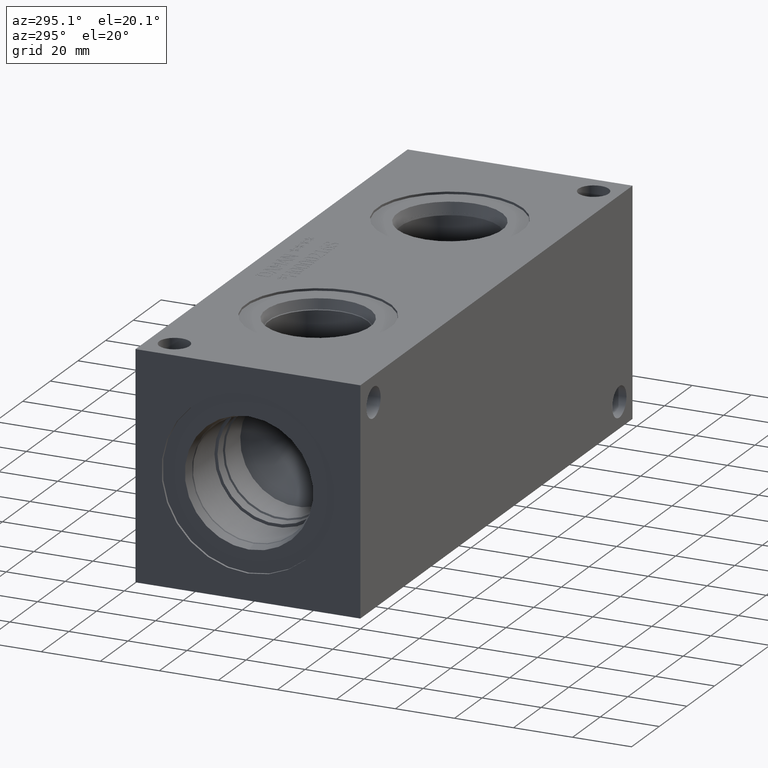
[diagram: clean part render]
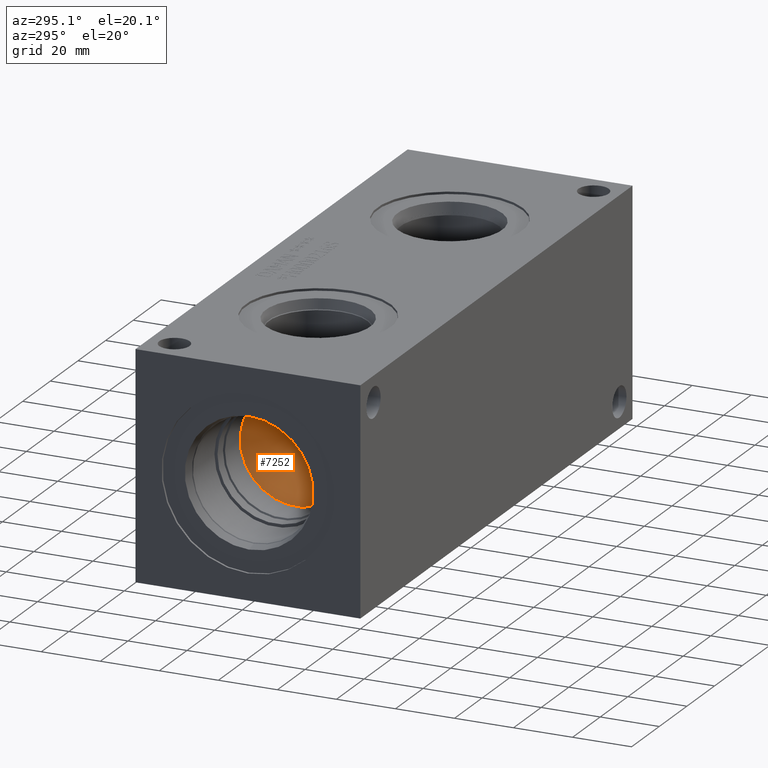
[diagram: same view with one face highlighted and labeled with its STEP entity id]
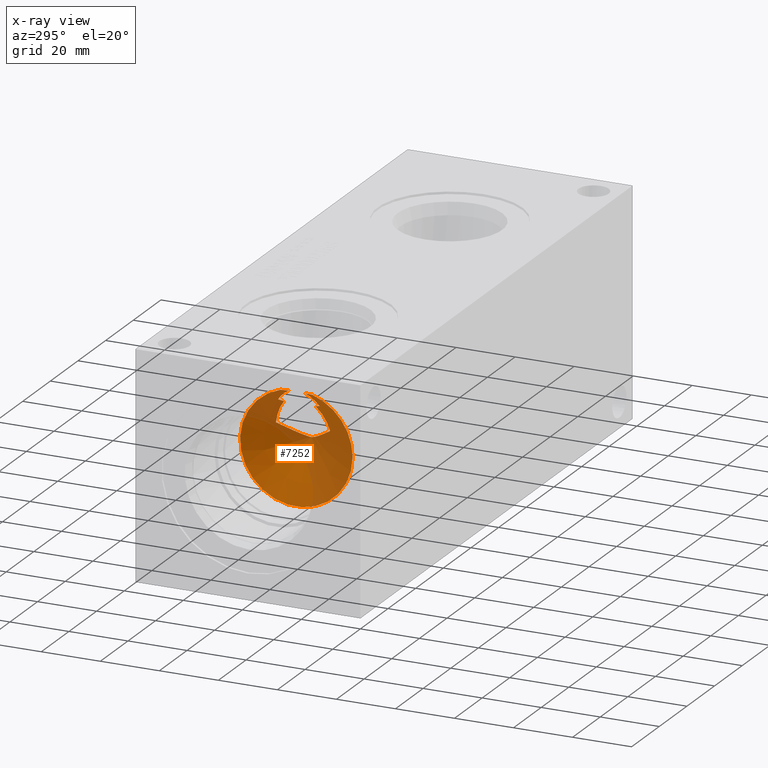
[diagram: x-ray of the same camera — body ghosted, the highlighted face saturated]
A machine part, auxiliary view. The second image highlights one B-rep face of the part: STEP entity #7252.
The next image is the same camera in x-ray: the body ghosted, the highlighted face saturated — about 50% of this face is hidden behind the body in this view.
In plain terms, the highlighted conical surface has half-angle 60 deg.
Its self-contained STEP definition (entity closure, byte-faithful):
#16=(
BOUNDED_CURVE()
B_SPLINE_CURVE(2,(#12519,#12520,#12521),.UNSPECIFIED.,.F.,.F.)
B_SPLINE_CURVE_WITH_KNOTS((3,3),(0.813695611087089,1.08787145368068),
 .UNSPECIFIED.)
CURVE()
GEOMETRIC_REPRESENTATION_ITEM()
RATIONAL_B_SPLINE_CURVE((1.01625544256163,1.01086636801821,1.))
REPRESENTATION_ITEM('')
);
#17=(
BOUNDED_CURVE()
B_SPLINE_CURVE(2,(#12527,#12528,#12529),.UNSPECIFIED.,.F.,.F.)
B_SPLINE_CURVE_WITH_KNOTS((3,3),(0.,0.274175842593592),.UNSPECIFIED.)
CURVE()
GEOMETRIC_REPRESENTATION_ITEM()
RATIONAL_B_SPLINE_CURVE((1.,1.01086636801821,1.01625544256163))
REPRESENTATION_ITEM('')
);
#29=CONICAL_SURFACE('',#7579,9.525,1.0471975511966);
#115=CIRCLE('',#7580,19.05);
#116=CIRCLE('',#7581,19.05);
#430=B_SPLINE_CURVE_WITH_KNOTS('',3,(#12443,#12444,#12445,#12446,#12447,
#12448,#12449,#12450,#12451,#12452,#12453,#12454,#12455,#12456,#12457,#12458,
#12459,#12460,#12461,#12462),.UNSPECIFIED.,.F.,.F.,(4,2,2,2,2,2,2,2,2,4),
(2.52562359253435,2.80240696753735,3.26947479546025,3.50300870942169,3.61977566640242,
3.67815914489278,3.70735088413796,3.73654262338314,3.74275759195683,3.74387824727734),
 .UNSPECIFIED.);
#431=B_SPLINE_CURVE_WITH_KNOTS('',3,(#12465,#12466,#12467,#12468,#12469,
#12470,#12471,#12472,#12473,#12474,#12475,#12476,#12477,#12478,#12479,#12480),
 .UNSPECIFIED.,.F.,.F.,(4,2,2,2,2,2,2,4),(3.74387824727734,3.74648103737136,
3.76009736098133,3.8755521802972,3.99100699961306,4.2219166382448,4.68373591550827,
4.94494046327852),.UNSPECIFIED.);
#432=B_SPLINE_CURVE_WITH_KNOTS('',3,(#12485,#12486,#12487,#12488,#12489,
#12490,#12491,#12492),.UNSPECIFIED.,.F.,.F.,(4,2,2,4),(4.57300539895857,
4.99674476174969,5.29090172872903,5.46688263320094),.UNSPECIFIED.);
#433=B_SPLINE_CURVE_WITH_KNOTS('',3,(#12495,#12496,#12497,#12498,#12499,
#12500,#12501,#12502),.UNSPECIFIED.,.F.,.F.,(4,2,2,4),(6.68692463970188,
6.86290554417378,7.15706251115312,7.58080187394425),.UNSPECIFIED.);
#434=B_SPLINE_CURVE_WITH_KNOTS('',3,(#12505,#12506,#12507,#12508),
 .UNSPECIFIED.,.F.,.F.,(4,4),(3.97925639336481,4.18695844446884),
 .UNSPECIFIED.);
#435=B_SPLINE_CURVE_WITH_KNOTS('',3,(#12510,#12511,#12512,#12513,#12514,
#12515,#12516,#12517),.UNSPECIFIED.,.F.,.F.,(4,2,2,4),(7.17654359760384,
7.19077463754214,7.47025054181725,7.76391250874292),.UNSPECIFIED.);
#436=B_SPLINE_CURVE_WITH_KNOTS('',3,(#12531,#12532,#12533,#12534,#12535,
#12536,#12537,#12538),.UNSPECIFIED.,.F.,.F.,(4,2,2,4),(6.05868495779114,
6.35234692471681,6.63182282899192,6.64605386893022),.UNSPECIFIED.);
#437=B_SPLINE_CURVE_WITH_KNOTS('',3,(#12539,#12540,#12541,#12542),
 .UNSPECIFIED.,.F.,.F.,(4,4),(2.56552366901468,2.77322572011871),
 .UNSPECIFIED.);
#876=FACE_OUTER_BOUND('',#1277,.T.);
#1277=EDGE_LOOP('',(#6210,#6211,#6212,#6213,#6214,#6215,#6216,#6217,#6218,
#6219,#6220,#6221));
#3305=VERTEX_POINT('',#12441);
#3306=VERTEX_POINT('',#12442);
#3307=VERTEX_POINT('',#12463);
#3309=VERTEX_POINT('',#12484);
#3310=VERTEX_POINT('',#12493);
#3311=VERTEX_POINT('',#12504);
#3312=VERTEX_POINT('',#12509);
#3313=VERTEX_POINT('',#12518);
#3314=VERTEX_POINT('',#12522);
#3315=VERTEX_POINT('',#12524);
#3316=VERTEX_POINT('',#12526);
#3317=VERTEX_POINT('',#12530);
#4288=EDGE_CURVE('',#3305,#3306,#430,.T.);
#4290=EDGE_CURVE('',#3306,#3307,#431,.T.);
#4292=EDGE_CURVE('',#3305,#3309,#432,.T.);
#4294=EDGE_CURVE('',#3310,#3307,#433,.T.);
#4295=EDGE_CURVE('',#3310,#3311,#434,.T.);
#4296=EDGE_CURVE('',#3312,#3311,#435,.T.);
#4297=EDGE_CURVE('',#3312,#3313,#16,.T.);
#4298=EDGE_CURVE('',#3313,#3314,#115,.T.);
#4299=EDGE_CURVE('',#3314,#3315,#116,.T.);
#4300=EDGE_CURVE('',#3315,#3316,#17,.T.);
#4301=EDGE_CURVE('',#3317,#3316,#436,.T.);
#4302=EDGE_CURVE('',#3317,#3309,#437,.T.);
#6210=ORIENTED_EDGE('',*,*,#4292,.F.);
#6211=ORIENTED_EDGE('',*,*,#4288,.T.);
#6212=ORIENTED_EDGE('',*,*,#4290,.T.);
#6213=ORIENTED_EDGE('',*,*,#4294,.F.);
#6214=ORIENTED_EDGE('',*,*,#4295,.T.);
#6215=ORIENTED_EDGE('',*,*,#4296,.F.);
#6216=ORIENTED_EDGE('',*,*,#4297,.T.);
#6217=ORIENTED_EDGE('',*,*,#4298,.T.);
#6218=ORIENTED_EDGE('',*,*,#4299,.T.);
#6219=ORIENTED_EDGE('',*,*,#4300,.T.);
#6220=ORIENTED_EDGE('',*,*,#4301,.F.);
#6221=ORIENTED_EDGE('',*,*,#4302,.T.);
#7252=ADVANCED_FACE('',(#876),#29,.F.);
#7579=AXIS2_PLACEMENT_3D('',#12503,#8870,#8871);
#7580=AXIS2_PLACEMENT_3D('',#12523,#8872,#8873);
#7581=AXIS2_PLACEMENT_3D('',#12525,#8874,#8875);
#8870=DIRECTION('center_axis',(-1.,0.,0.));
#8871=DIRECTION('ref_axis',(0.,-1.83697019872103E-16,-1.));
#8872=DIRECTION('center_axis',(-1.,0.,0.));
#8873=DIRECTION('ref_axis',(0.,1.,0.));
#8874=DIRECTION('center_axis',(-1.,0.,0.));
#8875=DIRECTION('ref_axis',(0.,1.,0.));
#12441=CARTESIAN_POINT('',(39.8704121318172,28.8980021037999,43.55194));
#12442=CARTESIAN_POINT('',(46.023116241001,38.1,38.0609831530988));
#12443=CARTESIAN_POINT('Ctrl Pts',(39.8704121318172,28.8980021037999,43.55194));
#12444=CARTESIAN_POINT('Ctrl Pts',(40.3567669189228,29.5960842003953,43.0775567977375));
#12445=CARTESIAN_POINT('Ctrl Pts',(40.8399386347635,30.2913340892927,42.60846253421));
#12446=CARTESIAN_POINT('Ctrl Pts',(42.1276970706304,32.1522935167037,41.3688625535951));
#12447=CARTESIAN_POINT('Ctrl Pts',(42.9219911690467,33.3071567058383,40.6127239165859));
#12448=CARTESIAN_POINT('Ctrl Pts',(44.0925997064834,35.0450313761748,39.5538500292551));
#12449=CARTESIAN_POINT('Ctrl Pts',(44.4781576117547,35.6236659514205,39.2146053143666));
#12450=CARTESIAN_POINT('Ctrl Pts',(45.0530161182272,36.5056182426687,38.7440000422512));
#12451=CARTESIAN_POINT('Ctrl Pts',(45.243656562957,36.8013553656567,38.5940185101657));
#12452=CARTESIAN_POINT('Ctrl Pts',(45.529601576997,37.2523971907152,38.3840930925793));
#12453=CARTESIAN_POINT('Ctrl Pts',(45.6248000955691,37.4037580889416,38.3167495654876));
#12454=CARTESIAN_POINT('Ctrl Pts',(45.7676479925402,37.6337463024792,38.2206322130423));
#12455=CARTESIAN_POINT('Ctrl Pts',(45.8152557083385,37.7108160766073,38.1894270881831));
#12456=CARTESIAN_POINT('Ctrl Pts',(45.9101236024984,37.8665991193887,38.1291041070065));
#12457=CARTESIAN_POINT('Ctrl Pts',(45.9600911544609,37.9430326157366,38.0984186739558));
#12458=CARTESIAN_POINT('Ctrl Pts',(46.0100426851097,38.0457471893822,38.068689256469));
#12459=CARTESIAN_POINT('Ctrl Pts',(46.0198016130414,38.0678752610557,38.0629338138632));
#12460=CARTESIAN_POINT('Ctrl Pts',(46.0228424493727,38.0920714342375,38.0611442002619));
#12461=CARTESIAN_POINT('Ctrl Pts',(46.023116241001,38.0959971405422,38.0609831530988));
#12462=CARTESIAN_POINT('Ctrl Pts',(46.023116241001,38.1,38.0609831530988));
#12463=CARTESIAN_POINT('',(39.8704121318172,47.3019978962001,43.55194));
#12465=CARTESIAN_POINT('Ctrl Pts',(46.023116241001,38.1,38.0609831530988));
#12466=CARTESIAN_POINT('Ctrl Pts',(46.023116241001,38.1092968843798,38.0609831530988));
#12467=CARTESIAN_POINT('Ctrl Pts',(46.0214644992595,38.1190133752931,38.0619544992734));
#12468=CARTESIAN_POINT('Ctrl Pts',(46.0075133315389,38.1705944401176,38.0701790760706));
#12469=CARTESIAN_POINT('Ctrl Pts',(45.9796317837957,38.2143341361204,38.0867901141914));
#12470=CARTESIAN_POINT('Ctrl Pts',(45.7738258455768,38.570800477615,38.2120085731588));
#12471=CARTESIAN_POINT('Ctrl Pts',(45.5782492082117,38.8715960022969,38.3469196579189));
#12472=CARTESIAN_POINT('Ctrl Pts',(45.1956124166188,39.4734916617184,38.6311638765543));
#12473=CARTESIAN_POINT('Ctrl Pts',(45.0038758244786,39.7702759173546,38.7832982844497));
#12474=CARTESIAN_POINT('Ctrl Pts',(44.4262683168119,40.6547099718721,39.259362535019));
#12475=CARTESIAN_POINT('Ctrl Pts',(44.0382793685254,41.2361987919179,39.6020482906985));
#12476=CARTESIAN_POINT('Ctrl Pts',(42.8626061284676,42.9796962177067,40.6685313122));
#12477=CARTESIAN_POINT('Ctrl Pts',(42.0647191372707,44.1391569286141,41.4288953175383));
#12478=CARTESIAN_POINT('Ctrl Pts',(40.7964396742341,45.9712493301944,42.650706931984));
#12479=CARTESIAN_POINT('Ctrl Pts',(40.3347702910674,46.6354883316295,43.0990119803278));
#12480=CARTESIAN_POINT('Ctrl Pts',(39.8704121318172,47.3019978962001,43.55194));
#12484=CARTESIAN_POINT('',(37.5531608827908,32.7470652977744,51.800833152361));
#12485=CARTESIAN_POINT('Ctrl Pts',(39.8704121318172,28.8980021037999,43.55194));
#12486=CARTESIAN_POINT('Ctrl Pts',(39.5978806890203,29.2216988036352,45.0243497809452));
#12487=CARTESIAN_POINT('Ctrl Pts',(39.238700097177,29.6801011938557,46.441845503723));
#12488=CARTESIAN_POINT('Ctrl Pts',(38.6293946348031,30.6023893455229,48.5642313938406));
#12489=CARTESIAN_POINT('Ctrl Pts',(38.3403725699892,31.0791403257872,49.4856541011593));
#12490=CARTESIAN_POINT('Ctrl Pts',(37.8824627767506,31.9833164979812,50.8588923927));
#12491=CARTESIAN_POINT('Ctrl Pts',(37.71226731988,32.3533266550441,51.3511318153532));
#12492=CARTESIAN_POINT('Ctrl Pts',(37.5531608860167,32.7470653153394,51.8008331381231));
#12493=CARTESIAN_POINT('',(37.5531608827908,43.4529347022256,51.800833152361));
#12495=CARTESIAN_POINT('Ctrl Pts',(37.5531608860167,43.4529346846606,51.8008331381231));
#12496=CARTESIAN_POINT('Ctrl Pts',(37.71226731988,43.8466733449559,51.3511318153532));
#12497=CARTESIAN_POINT('Ctrl Pts',(37.8824627767506,44.2166835020188,50.8588923927));
#12498=CARTESIAN_POINT('Ctrl Pts',(38.3403725699892,45.1208596742128,49.4856541011593));
#12499=CARTESIAN_POINT('Ctrl Pts',(38.6293946348031,45.5976106544771,48.5642313938406));
#12500=CARTESIAN_POINT('Ctrl Pts',(39.238700097177,46.5198988061443,46.441845503723));
#12501=CARTESIAN_POINT('Ctrl Pts',(39.5978806890203,46.9783011963648,45.0243497809452));
#12502=CARTESIAN_POINT('Ctrl Pts',(39.8704121318172,47.3019978962001,43.55194));
#12503=CARTESIAN_POINT('Origin',(40.5463813140312,38.1,38.1));
#12504=CARTESIAN_POINT('',(36.8424640726701,45.1427101691959,52.4002));
#12505=CARTESIAN_POINT('Ctrl Pts',(37.5531608739162,43.4529347058118,51.800833152361));
#12506=CARTESIAN_POINT('Ctrl Pts',(37.3340830127108,44.0214480838845,51.9861013909156));
#12507=CARTESIAN_POINT('Ctrl Pts',(37.0955253576488,44.5828759371144,52.1873250518173));
#12508=CARTESIAN_POINT('Ctrl Pts',(36.8424640726701,45.1427101691959,52.4002));
#12509=CARTESIAN_POINT('',(35.3917005805994,40.7451625076919,56.3626));
#12510=CARTESIAN_POINT('Ctrl Pts',(35.3917005805994,40.7451625076919,56.3626));
#12511=CARTESIAN_POINT('Ctrl Pts',(35.3994787026712,40.7904707386434,56.3424248541185));
#12512=CARTESIAN_POINT('Ctrl Pts',(35.4074296916766,40.8355874214755,56.3217877656796));
#12513=CARTESIAN_POINT('Ctrl Pts',(35.5749617987674,41.7625374285417,55.8866377592605));
#12514=CARTESIAN_POINT('Ctrl Pts',(35.8007095706259,42.5631946909399,55.2934561268085));
#12515=CARTESIAN_POINT('Ctrl Pts',(36.2692225637863,43.9142878527993,54.0266101952216));
#12516=CARTESIAN_POINT('Ctrl Pts',(36.5515968389622,44.5662573879472,53.2456776246306));
#12517=CARTESIAN_POINT('Ctrl Pts',(36.8424640726701,45.1427101691959,52.4002));
#12518=CARTESIAN_POINT('',(35.04712,43.5203266728123,56.3626));
#12519=CARTESIAN_POINT('Ctrl Pts',(35.3917005805994,40.7451625076919,56.3626));
#12520=CARTESIAN_POINT('Ctrl Pts',(35.2786917336118,42.1106624002211,56.3626));
#12521=CARTESIAN_POINT('Ctrl Pts',(35.04712,43.5203266728122,56.3626));
#12522=CARTESIAN_POINT('',(35.04712,19.05,38.1));
#12523=CARTESIAN_POINT('Origin',(35.04712,38.1,38.1));
#12524=CARTESIAN_POINT('',(35.04712,32.6796733271877,56.3626));
#12525=CARTESIAN_POINT('Origin',(35.04712,38.1,38.1));
#12526=CARTESIAN_POINT('',(35.3917005805994,35.4548374923081,56.3626));
#12527=CARTESIAN_POINT('Ctrl Pts',(35.04712,32.6796733271878,56.3626));
#12528=CARTESIAN_POINT('Ctrl Pts',(35.2786917336117,34.0893375997794,56.3626));
#12529=CARTESIAN_POINT('Ctrl Pts',(35.3917005805994,35.4548374923081,56.3626));
#12530=CARTESIAN_POINT('',(36.8424640726701,31.0572898308041,52.4002));
#12531=CARTESIAN_POINT('Ctrl Pts',(36.8424640726701,31.0572898308041,52.4002));
#12532=CARTESIAN_POINT('Ctrl Pts',(36.5515968389622,31.6337426120528,53.2456776246306));
#12533=CARTESIAN_POINT('Ctrl Pts',(36.2692225637863,32.2857121472007,54.0266101952216));
#12534=CARTESIAN_POINT('Ctrl Pts',(35.8007095706259,33.6368053090601,55.2934561268085));
#12535=CARTESIAN_POINT('Ctrl Pts',(35.5749617987674,34.4374625714583,55.8866377592605));
#12536=CARTESIAN_POINT('Ctrl Pts',(35.4074296916766,35.3644125785245,56.3217877656796));
#12537=CARTESIAN_POINT('Ctrl Pts',(35.3994787026712,35.4095292613566,56.3424248541185));
#12538=CARTESIAN_POINT('Ctrl Pts',(35.3917005805994,35.4548374923081,56.3626));
#12539=CARTESIAN_POINT('Ctrl Pts',(36.8424640726701,31.0572898308041,52.4002));
#12540=CARTESIAN_POINT('Ctrl Pts',(37.0955253576488,31.6171240628856,52.1873250518173));
#12541=CARTESIAN_POINT('Ctrl Pts',(37.3340830127108,32.1785519161155,51.9861013909156));
#12542=CARTESIAN_POINT('Ctrl Pts',(37.5531608739162,32.7470652941882,51.800833152361));